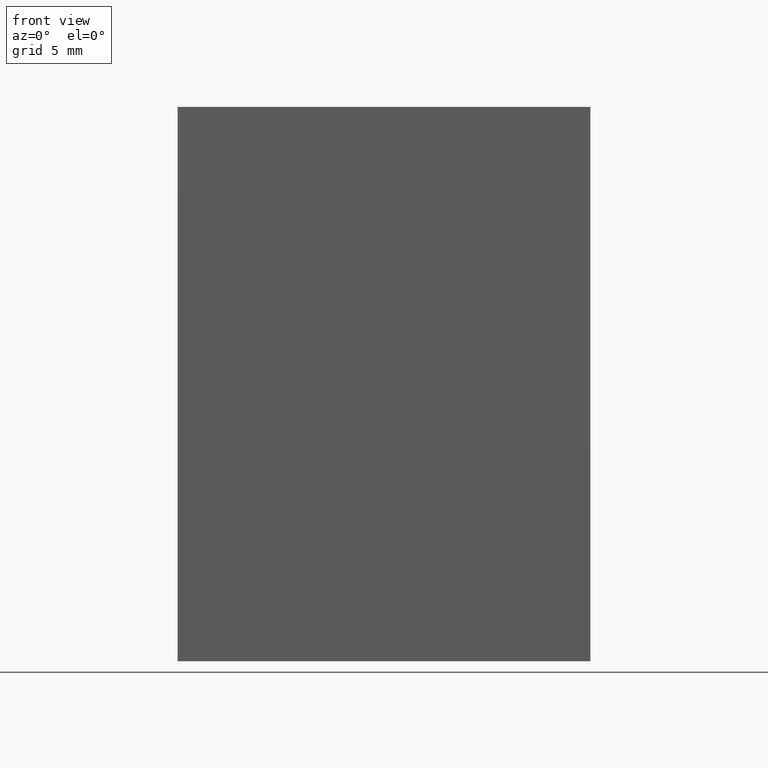
[diagram: clean part render]
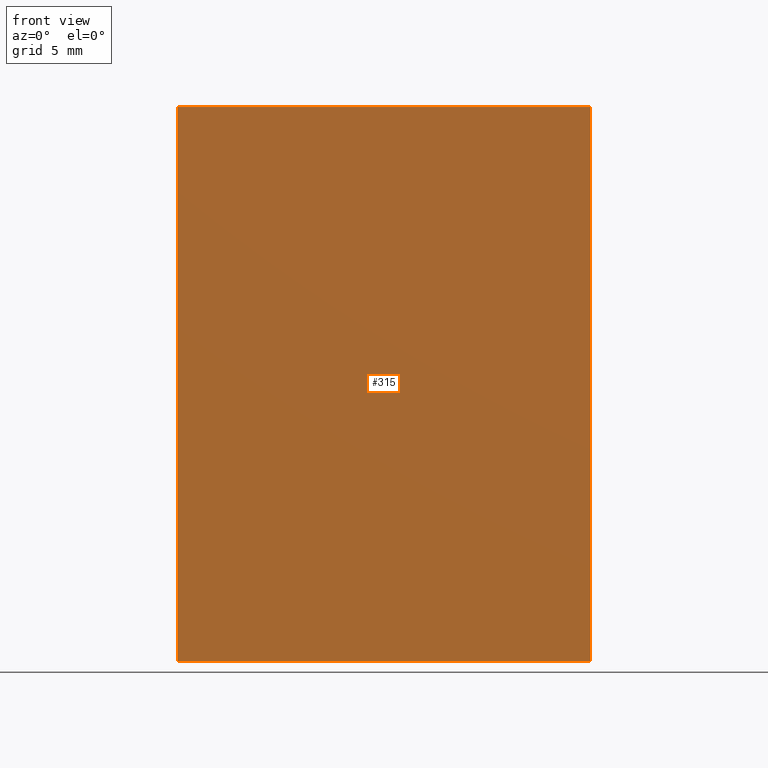
[diagram: same view with one face highlighted and labeled with its STEP entity id]
A machine part, front view. The second image highlights one B-rep face of the part: STEP entity #315.
In plain terms, the highlighted planar face has unit normal (0, -1, 0).
Its self-contained STEP definition (entity closure, byte-faithful):
#29=FACE_OUTER_BOUND('',#45,.T.);
#45=EDGE_LOOP('',(#272,#273,#274,#275));
#73=LINE('',#489,#115);
#80=LINE('',#501,#122);
#87=LINE('',#515,#129);
#88=LINE('',#517,#130);
#115=VECTOR('',#402,10.);
#122=VECTOR('',#411,10.);
#129=VECTOR('',#426,10.);
#130=VECTOR('',#429,10.);
#149=VERTEX_POINT('',#485);
#151=VERTEX_POINT('',#488);
#154=VERTEX_POINT('',#497);
#158=VERTEX_POINT('',#513);
#185=EDGE_CURVE('',#151,#149,#73,.T.);
#192=EDGE_CURVE('',#154,#151,#80,.T.);
#199=EDGE_CURVE('',#149,#158,#87,.T.);
#200=EDGE_CURVE('',#158,#154,#88,.T.);
#272=ORIENTED_EDGE('',*,*,#200,.T.);
#273=ORIENTED_EDGE('',*,*,#192,.T.);
#274=ORIENTED_EDGE('',*,*,#185,.T.);
#275=ORIENTED_EDGE('',*,*,#199,.T.);
#299=PLANE('',#354);
#315=ADVANCED_FACE('',(#29),#299,.T.);
#354=AXIS2_PLACEMENT_3D('',#516,#427,#428);
#402=DIRECTION('',(1.,1.22464679914735E-16,0.));
#411=DIRECTION('',(0.,0.,-1.));
#426=DIRECTION('',(0.,0.,1.));
#427=DIRECTION('center_axis',(1.22464679914735E-16,-1.,0.));
#428=DIRECTION('ref_axis',(0.,0.,-1.));
#429=DIRECTION('',(-1.,-1.22464679914735E-16,0.));
#485=CARTESIAN_POINT('',(1.11022302462516E-15,3.18042584056346E-16,-13.9));
#488=CARTESIAN_POINT('',(-20.7,-2.21697629017867E-15,-13.9));
#489=CARTESIAN_POINT('',(1.11022302462516E-15,3.18042584056346E-16,-13.9));
#497=CARTESIAN_POINT('',(-20.7,-2.21697629017867E-15,13.9));
#501=CARTESIAN_POINT('',(-20.7,-2.21697629017867E-15,0.));
#513=CARTESIAN_POINT('',(1.11022302462516E-15,3.18042584056346E-16,13.9));
#515=CARTESIAN_POINT('',(1.11022302462516E-15,3.18042584056346E-16,0.));
#516=CARTESIAN_POINT('Origin',(1.11022302462516E-15,3.18042584056346E-16,
0.));
#517=CARTESIAN_POINT('',(1.11022302462516E-15,3.18042584056346E-16,13.9));